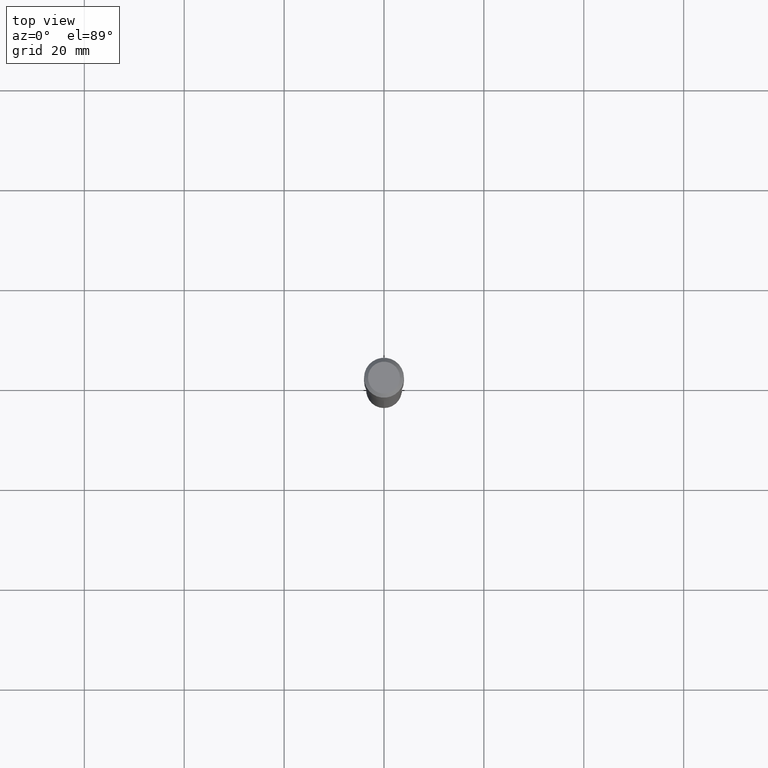
[diagram: clean part render]
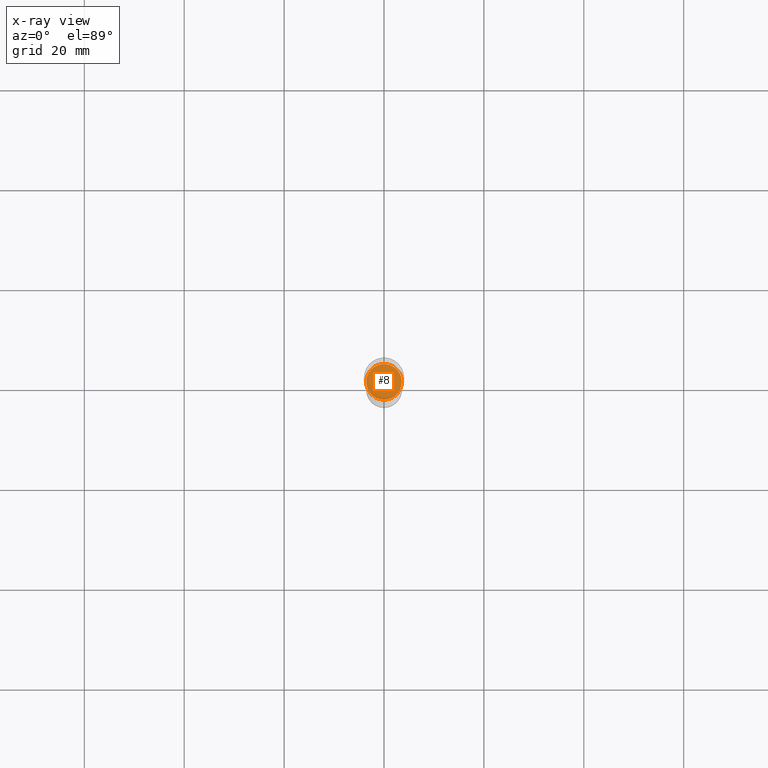
[diagram: x-ray — body ghosted, one internal face saturated and labeled with its STEP entity id]
A machine part, top view, then the same camera in x-ray: the body is ghosted and one INTERNAL B-rep face — a face not visible from any outside direction — is saturated and labeled: STEP entity #8.
In plain terms, the highlighted planar face has unit normal (-0, 0, 1).
Its self-contained STEP definition (entity closure, byte-faithful):
#8 = ADVANCED_FACE ( 'NONE', ( #15 ), #143, .F. ) ;
#15 = FACE_OUTER_BOUND ( 'NONE', #396, .T. ) ;
#33 = CARTESIAN_POINT ( 'NONE',  ( -0.1401000000000000023, -5.698192459793258446E-15, -1.917900000000000382 ) ) ;
#90 = CARTESIAN_POINT ( 'NONE',  ( 4.690164623382474764E-29, -6.696312059767270024E-15, -1.917900000000000382 ) ) ;
#108 = AXIS2_PLACEMENT_3D ( 'NONE', #90, #139, #430 ) ;
#129 = CIRCLE ( 'NONE', #463, 0.1401000000000000023 ) ;
#139 = DIRECTION ( 'NONE',  ( -2.438088387897960049E-29, 3.491481338843145188E-15, 1.000000000000000000 ) ) ;
#143 = PLANE ( 'NONE',  #108 ) ;
#168 = AXIS2_PLACEMENT_3D ( 'NONE', #343, #410, #487 ) ;
#199 = CIRCLE ( 'NONE', #168, 0.1401000000000000023 ) ;
#222 = EDGE_CURVE ( 'NONE', #301, #479, #129, .T. ) ;
#235 = DIRECTION ( 'NONE',  ( -2.445468806185136597E-29, 3.491481338843145583E-15, 1.000000000000000000 ) ) ;
#259 = EDGE_CURVE ( 'NONE', #479, #301, #199, .T. ) ;
#301 = VERTEX_POINT ( 'NONE', #33 ) ;
#306 = DIRECTION ( 'NONE',  ( 1.000000000000000000, -6.982962677686269077E-15, 0.000000000000000000 ) ) ;
#341 = ORIENTED_EDGE ( 'NONE', *, *, #259, .F. ) ;
#343 = CARTESIAN_POINT ( 'NONE',  ( 4.690164623382474764E-29, -6.696312059767270024E-15, -1.917900000000000382 ) ) ;
#359 = CARTESIAN_POINT ( 'NONE',  ( 4.690164623382474764E-29, -6.696312059767270024E-15, -1.917900000000000382 ) ) ;
#396 = EDGE_LOOP ( 'NONE', ( #341, #437 ) ) ;
#404 = CARTESIAN_POINT ( 'NONE',  ( 0.1401000000000000023, -7.674625130911116123E-15, -1.917900000000000382 ) ) ;
#410 = DIRECTION ( 'NONE',  ( -2.445468806185136597E-29, 3.491481338843145583E-15, 1.000000000000000000 ) ) ;
#430 = DIRECTION ( 'NONE',  ( 1.000000000000000000, -6.982962677686265922E-15, 4.876176775795935793E-29 ) ) ;
#437 = ORIENTED_EDGE ( 'NONE', *, *, #222, .F. ) ;
#463 = AXIS2_PLACEMENT_3D ( 'NONE', #359, #235, #306 ) ;
#479 = VERTEX_POINT ( 'NONE', #404 ) ;
#487 = DIRECTION ( 'NONE',  ( 1.000000000000000000, -6.982962677686269077E-15, 0.000000000000000000 ) ) ;